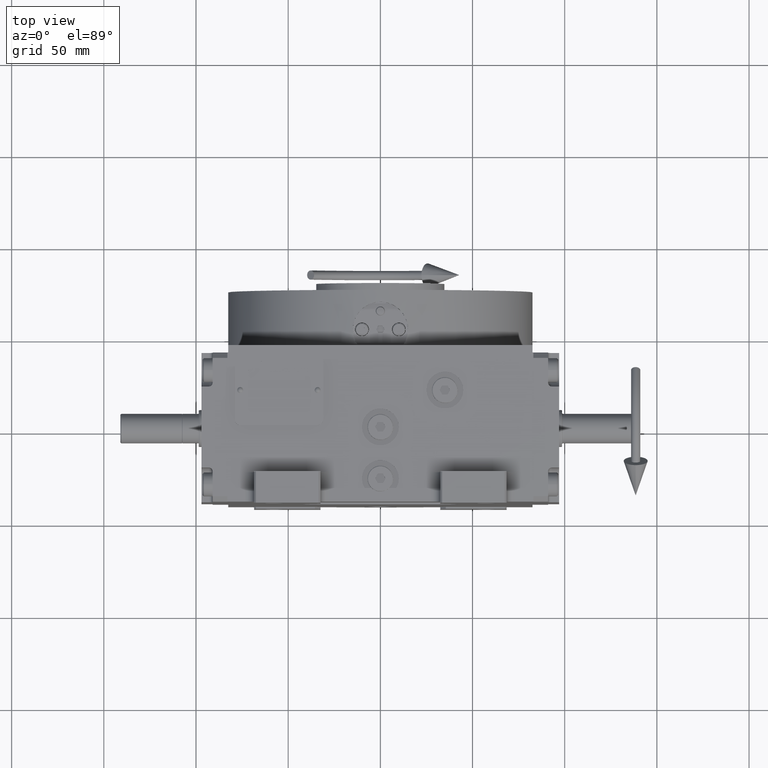
[diagram: clean part render]
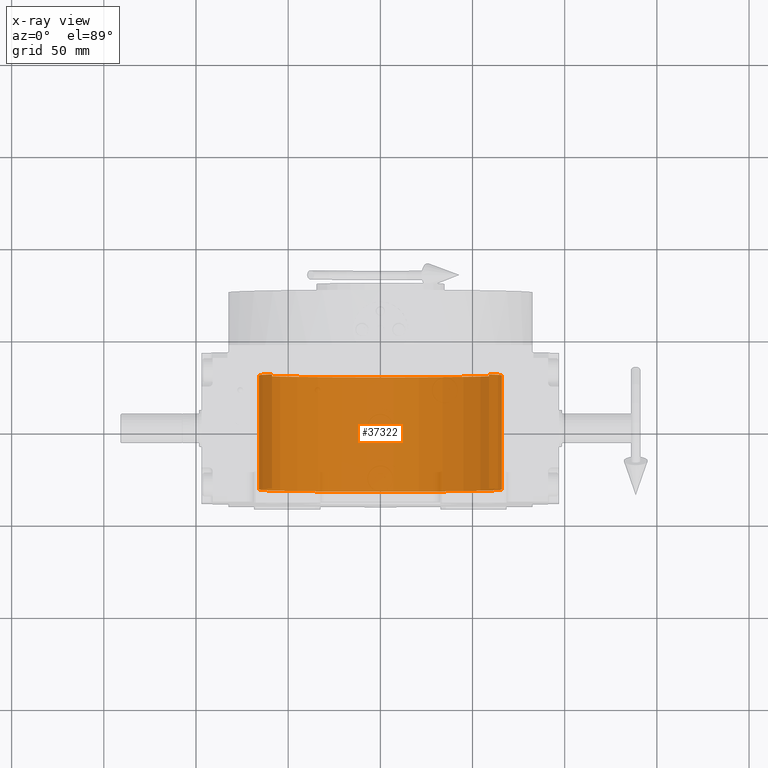
[diagram: x-ray — body ghosted, one internal face saturated and labeled with its STEP entity id]
A machine part, top view, then the same camera in x-ray: the body is ghosted and one INTERNAL B-rep face — a face not visible from any outside direction — is saturated and labeled: STEP entity #37322.
In plain terms, the highlighted cylindrical surface (partial cylindrical patch) has radius 66 mm, axis along (0, 1, 0).
Its self-contained STEP definition (entity closure, byte-faithful):
#2783 = CIRCLE ( 'NONE', #38924, 66.00000000000000000 ) ;
#3283 = DIRECTION ( 'NONE',  ( 0.000000000000000000, 0.000000000000000000, 1.000000000000000000 ) ) ;
#3815 = CARTESIAN_POINT ( 'NONE',  ( -58.78775382679628336, 98.15000000000000568, 30.00000000000000000 ) ) ;
#8065 = AXIS2_PLACEMENT_3D ( 'NONE', #29459, #14274, #33995 ) ;
#8872 = CARTESIAN_POINT ( 'NONE',  ( -58.78775382679628336, 30.00000000000001421, 30.00000000000000000 ) ) ;
#8971 = CARTESIAN_POINT ( 'NONE',  ( -58.78775382679628336, -31.99999999999998579, 30.00000000000000000 ) ) ;
#10078 = CYLINDRICAL_SURFACE ( 'NONE', #8065, 66.00000000000000000 ) ;
#12327 = DIRECTION ( 'NONE',  ( 0.000000000000000000, -1.000000000000000000, 0.000000000000000000 ) ) ;
#13961 = DIRECTION ( 'NONE',  ( -0.000000000000000000, 1.000000000000000000, -0.000000000000000000 ) ) ;
#14210 = CIRCLE ( 'NONE', #50367, 66.00000000000000000 ) ;
#14274 = DIRECTION ( 'NONE',  ( -0.000000000000000000, 1.000000000000000000, -0.000000000000000000 ) ) ;
#14747 = EDGE_LOOP ( 'NONE', ( #40863, #61016, #32392, #38064 ) ) ;
#18795 = CARTESIAN_POINT ( 'NONE',  ( 0.000000000000000000, -31.99999999999998579, 0.000000000000000000 ) ) ;
#19131 = VERTEX_POINT ( 'NONE', #8971 ) ;
#21152 = VECTOR ( 'NONE', #31935, 1000.000000000000000 ) ;
#22615 = DIRECTION ( 'NONE',  ( 0.000000000000000000, 0.000000000000000000, 1.000000000000000000 ) ) ;
#24513 = CARTESIAN_POINT ( 'NONE',  ( 58.78775382679628336, -31.99999999999998579, 30.00000000000000000 ) ) ;
#28398 = VECTOR ( 'NONE', #12327, 1000.000000000000000 ) ;
#29459 = CARTESIAN_POINT ( 'NONE',  ( 0.000000000000000000, 98.15000000000000568, 0.000000000000000000 ) ) ;
#31935 = DIRECTION ( 'NONE',  ( -0.000000000000000000, 1.000000000000000000, -0.000000000000000000 ) ) ;
#32273 = CARTESIAN_POINT ( 'NONE',  ( 58.78775382679628336, 98.15000000000000568, 30.00000000000000000 ) ) ;
#32392 = ORIENTED_EDGE ( 'NONE', *, *, #48047, .T. ) ;
#33995 = DIRECTION ( 'NONE',  ( 0.000000000000000000, 0.000000000000000000, 1.000000000000000000 ) ) ;
#36652 = EDGE_CURVE ( 'NONE', #56716, #58834, #2783, .T. ) ;
#37322 = ADVANCED_FACE ( 'NONE', ( #58582 ), #10078, .F. ) ;
#38064 = ORIENTED_EDGE ( 'NONE', *, *, #36652, .T. ) ;
#38729 = CARTESIAN_POINT ( 'NONE',  ( 58.78775382679628336, 30.00000000000001421, 30.00000000000000000 ) ) ;
#38924 = AXIS2_PLACEMENT_3D ( 'NONE', #61765, #53359, #22615 ) ;
#40863 = ORIENTED_EDGE ( 'NONE', *, *, #56683, .T. ) ;
#46186 = VERTEX_POINT ( 'NONE', #24513 ) ;
#48047 = EDGE_CURVE ( 'NONE', #46186, #56716, #58130, .T. ) ;
#50367 = AXIS2_PLACEMENT_3D ( 'NONE', #18795, #13961, #3283 ) ;
#53359 = DIRECTION ( 'NONE',  ( -0.000000000000000000, 1.000000000000000000, -0.000000000000000000 ) ) ;
#56683 = EDGE_CURVE ( 'NONE', #58834, #19131, #61175, .T. ) ;
#56716 = VERTEX_POINT ( 'NONE', #38729 ) ;
#58130 = LINE ( 'NONE', #32273, #21152 ) ;
#58582 = FACE_OUTER_BOUND ( 'NONE', #14747, .T. ) ;
#58834 = VERTEX_POINT ( 'NONE', #8872 ) ;
#61016 = ORIENTED_EDGE ( 'NONE', *, *, #63469, .F. ) ;
#61175 = LINE ( 'NONE', #3815, #28398 ) ;
#61765 = CARTESIAN_POINT ( 'NONE',  ( 0.000000000000000000, 30.00000000000001421, 0.000000000000000000 ) ) ;
#63469 = EDGE_CURVE ( 'NONE', #46186, #19131, #14210, .T. ) ;